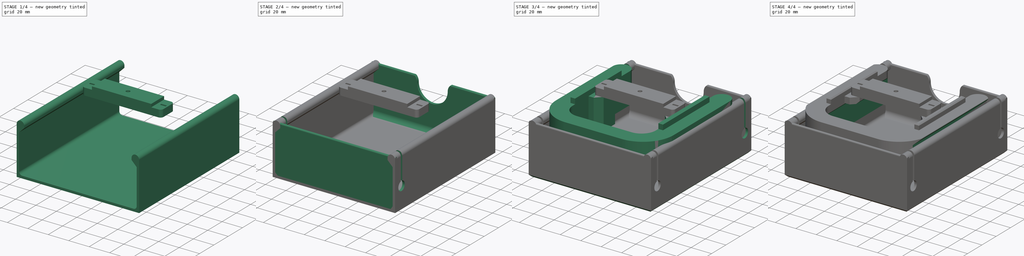
[diagram: build sequence overview — one tinted view per stage of 4, left to right]
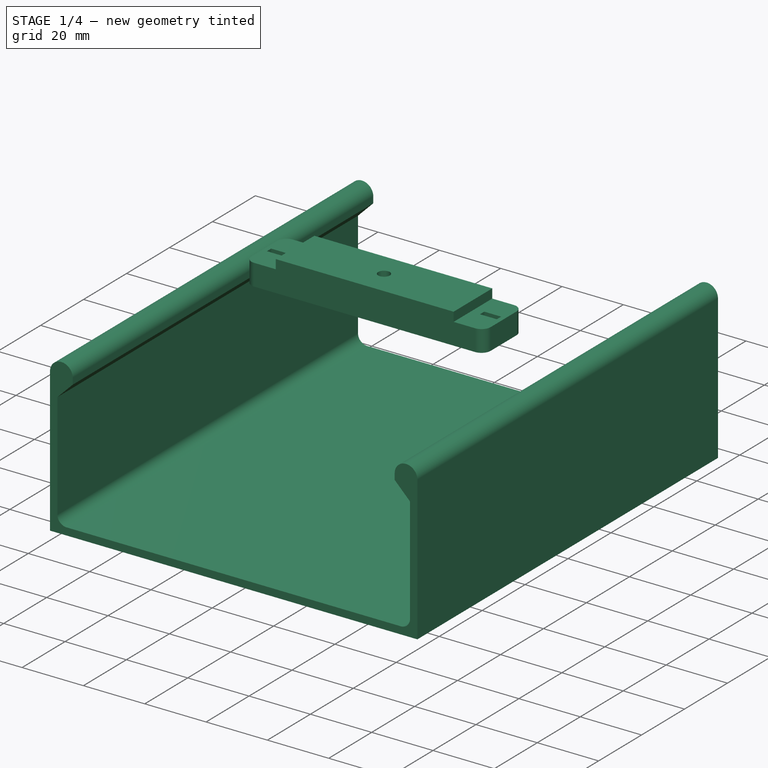
[diagram: stage 1 of 4 — iso view after this stage's code; geometry added in this stage tinted green]
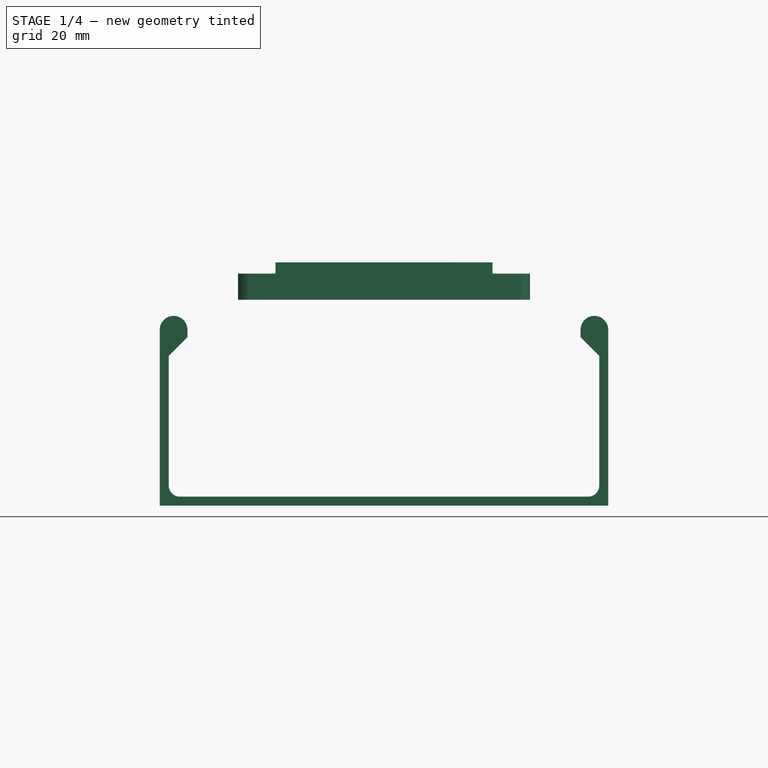
[diagram: stage 1 of 4 — front view after this stage's code; geometry added in this stage tinted green]
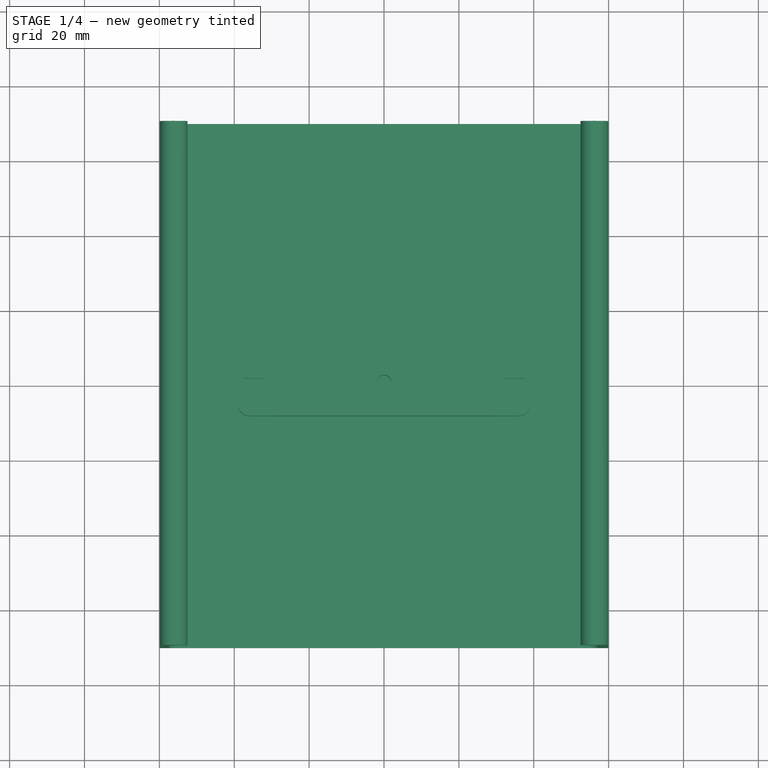
[diagram: stage 1 of 4 — top view after this stage's code; geometry added in this stage tinted green]
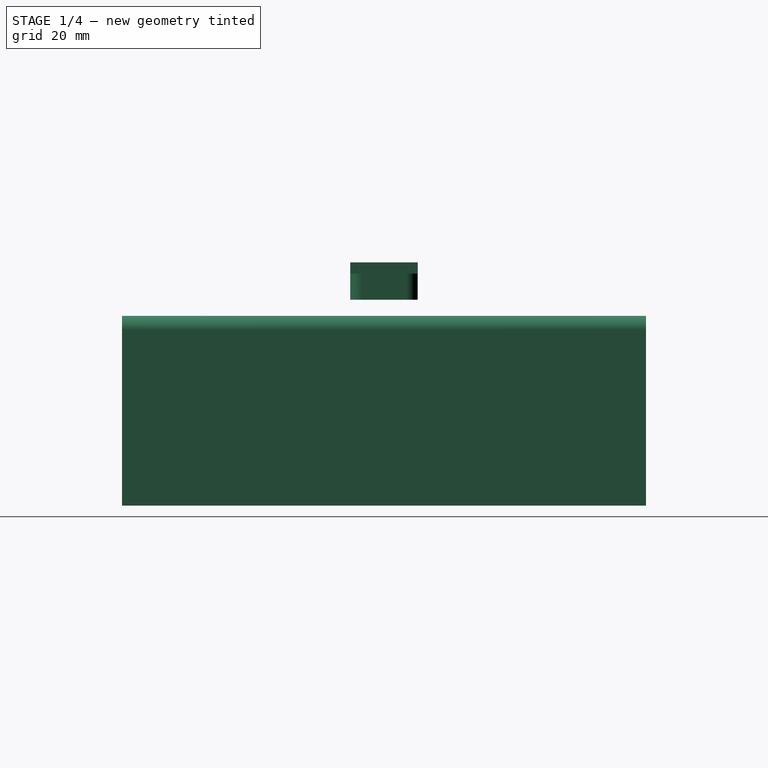
[diagram: stage 1 of 4 — right view after this stage's code; geometry added in this stage tinted green]
FCSTD DOCUMENT  (FreeCAD 0.21R33771 (Git))
Label: 20240401h_abdeckung
License: All rights reserved
LicenseURL: http://en.wikipedia.org/wiki/All_rights_reserved
objects: Sketcher::SketchObject×11, PartDesign::Pad×5, PartDesign::Pocket×5, PartDesign::Body×3, PartDesign::Chamfer×2, PartDesign::Mirrored×1
note: 39 computed .brp shape members not serialized (recipe doc carries the construction recipe); baked Part::Feature solids carry a one-line shape summary decoded from their .brp

FEATURE [PartDesign::Body] Body  label="halter"
  Group = -> [Sketch,Sketch001,Pad,Sketch002,Pad001,Chamfer,Sketch003,Pocket,Sketch004,Pocket001]
  Origin = -> Origin
  Tip = -> Pocket001
FEATURE [Sketcher::SketchObject] Sketch005
  FullyConstrained = true
  MapMode = 5
  Placement = pos=(0,0,0) rot=(1,0,0;1.5708rad)
  Support = -> [XZ_Plane001]
  sketch-geometry (21):
    g0: LineSegment StartX=-57.5 StartY=-49.6 StartZ=0 EndX=-57.5 EndY=-15 EndZ=0
    g1: LineSegment StartX=-57.5 StartY=-15 StartZ=0 EndX=-52.5 EndY=-10 EndZ=0
    g2: LineSegment StartX=-52.5 StartY=-10 StartZ=0 EndX=-52.5 EndY=-8 EndZ=0
    g3: ArcOfCircle CenterX=-56.2 CenterY=-8 CenterZ=0 NormalX=0 NormalY=0 NormalZ=1 AngleXU=0 Radius=3.7 StartAngle=-9e-16 EndAngle=3.14159
    g4: LineSegment StartX=-59.9 StartY=-8 StartZ=0 EndX=-59.9 EndY=-55 EndZ=0
    g5: LineSegment StartX=57.5 StartY=-49.6 StartZ=0 EndX=57.5 EndY=-15 EndZ=0
    g6: LineSegment StartX=57.5 StartY=-15 StartZ=0 EndX=52.5 EndY=-10 EndZ=0
    g7: LineSegment StartX=52.5 StartY=-10 StartZ=0 EndX=52.5 EndY=-8 EndZ=0
    g8: LineSegment StartX=59.9 StartY=-8 StartZ=0 EndX=59.9 EndY=-55 EndZ=0
    g9: ArcOfCircle CenterX=56.2 CenterY=-8 CenterZ=0 NormalX=0 NormalY=0 NormalZ=1 AngleXU=0 Radius=3.7 StartAngle=1e-16 EndAngle=3.14159
    g10: LineSegment StartX=52.5 StartY=-10 StartZ=0 EndX=-52.5 EndY=-10 EndZ=0
    g11: LineSegment StartX=52.5 StartY=-8 StartZ=0 EndX=-52.5 EndY=-8 EndZ=0
    g12: LineSegment StartX=-57.5 StartY=-15 StartZ=0 EndX=57.5 EndY=-15 EndZ=0
    g13: LineSegment StartX=59.9 StartY=-8 StartZ=0 EndX=52.5 EndY=-8 EndZ=0
    g14: LineSegment StartX=-52.5 StartY=-8 StartZ=0 EndX=-59.9 EndY=-8 EndZ=0
    g15: LineSegment StartX=-59.9 StartY=-55 StartZ=0 EndX=59.9 EndY=-55 EndZ=0
    g16: LineSegment StartX=54.5 StartY=-52.6 StartZ=0 EndX=-54.5 EndY=-52.6 EndZ=0
    g17: ArcOfCircle CenterX=-54.5 CenterY=-49.6 CenterZ=0 NormalX=0 NormalY=0 NormalZ=1 AngleXU=0 Radius=3 StartAngle=3.14159 EndAngle=4.71239
    g18: GeomPoint X=-57.5 Y=-52.6 Z=0
    g19: ArcOfCircle CenterX=54.5 CenterY=-49.6 CenterZ=0 NormalX=0 NormalY=0 NormalZ=1 AngleXU=0 Radius=3 StartAngle=4.71239 EndAngle=6.28319
    g20: GeomPoint X=57.5 Y=-52.6 Z=0
  constraints (55):
    c: Vertical(g0)
    c: Coincident(g0,g1)
    c: Coincident(g1,g2)
    c: Vertical(g2)
    c: Coincident(g3,g2)
    c: Coincident(g4,g3)
    c: Vertical(g4)
    c: Vertical(g5)
    c: Coincident(g5,g6)
    c: Coincident(g6,g7)
    c: Vertical(g7)
    c: Vertical(g8)
    c: Coincident(g9,g8)
    c: Coincident(g9,g7)
    c: Angle(g6) = 2.35619
    c: Angle(g1) = 0.785398
    c: Coincident(g10,g6)
    c: Coincident(g10,g1)
    c: Horizontal(g10)
    c: Coincident(g11,g7)
    c: Coincident(g11,g2)
    c: Coincident(g12,g0)
    c: Coincident(g12,g5)
    c: Coincident(g13,g8)
    c: Coincident(g13,g7)
    c: Coincident(g14,g2)
    c: Coincident(g14,g3)
    c: PointOnObject(g3,g14)
    c: PointOnObject(g9,g13)
    c: Horizontal(g13)
    c: Horizontal(g11)
    c: Horizontal(g14)
    c: Horizontal(g12)
    c: DistanceX(g0,g1) = 5
    c: DistanceY(g2,g2) = 2
    c: DistanceX(g4,g18) = 2.4
    c: Coincident(g15,g4)
    c: Coincident(g15,g8)
    c: DistanceY(g4,g18) = 2.4  'bodendicke'
    c: Equal(g3,g9)
    c: DistanceX(g0,g5) = 115
    c: Symmetric(g20,g18,g-2)
    c: DistanceY(g5) = -15
    c: PointOnObject(g18,g0)
    c: PointOnObject(g18,g16)
    c: Tangent(g0,g17) = 1.5708
    c: Tangent(g16,g17) = 1.5708
    c: PointOnObject(g20,g5)
    c: PointOnObject(g20,g16)
    c: Tangent(g5,g19) = -1.5708
    c: Tangent(g16,g19) = 1.5708
    c: Equal(g19,g17)
    c: Radius(g19) = 3
    c: Horizontal(g15)
    c: DistanceY(g8) = -55  'tiefe_ganz_unten'
FEATURE [PartDesign::Pad] Pad002  label="kanal"
  Direction = (0,-1,2e-16)
  Length = 140
  Length2 = 10
  Midplane = true
  Placement = pos=(0,0,0) rot=(1,0,0;1.5708rad)
  Profile = -> Sketch005
  ReferenceAxis = -> Sketch005 [N_Axis]
  Type = 0
FEATURE [PartDesign::Body] Body001  label="deckel"
  Group = -> [Sketch005,Pad002,Sketch006,Pad003,Sketch007,Pocket002,Sketch008,Pocket003,Chamfer001,Mirrored]
  Origin = -> Origin001
  Tip = -> Mirrored
FEATURE [Sketcher::SketchObject] Sketch009
  FullyConstrained = true
  MapMode = 5
  Support = -> [XY_Plane002]
  sketch-geometry (19):
    g0: ArcOfCircle CenterX=-36 CenterY=6 CenterZ=0 NormalX=0 NormalY=0 NormalZ=1 AngleXU=0 Radius=3 StartAngle=1.5708 EndAngle=3.14159
    g1: LineSegment StartX=-36 StartY=9 StartZ=0 EndX=36 EndY=9 EndZ=0
    g2: ArcOfCircle CenterX=36 CenterY=6 CenterZ=0 NormalX=0 NormalY=0 NormalZ=1 AngleXU=0 Radius=3 StartAngle=3e-16 EndAngle=1.5708
    g3: LineSegment StartX=39 StartY=6 StartZ=0 EndX=39 EndY=-6 EndZ=0
    g4: ArcOfCircle CenterX=36 CenterY=-6 CenterZ=0 NormalX=0 NormalY=0 NormalZ=1 AngleXU=0 Radius=3 StartAngle=4.71239 EndAngle=6.28319
    g5: LineSegment StartX=36 StartY=-9 StartZ=0 EndX=-36 EndY=-9 EndZ=0
    g6: ArcOfCircle CenterX=-36 CenterY=-6 CenterZ=0 NormalX=0 NormalY=0 NormalZ=1 AngleXU=0 Radius=3 StartAngle=3.14159 EndAngle=4.71239
    g7: LineSegment StartX=-39 StartY=-6 StartZ=0 EndX=-39 EndY=6 EndZ=0
    g8: GeomPoint X=-39 Y=9 Z=0
    g9: GeomPoint X=39 Y=-9 Z=0
    g10: LineSegment StartX=-37.5 StartY=1 StartZ=0 EndX=-32 EndY=1 EndZ=0
    g11: LineSegment StartX=-32 StartY=1 StartZ=0 EndX=-32 EndY=-1 EndZ=0
    g12: LineSegment StartX=-32 StartY=-1 StartZ=0 EndX=-37.5 EndY=-1 EndZ=0
    g13: LineSegment StartX=-37.5 StartY=-1 StartZ=0 EndX=-37.5 EndY=1 EndZ=0
    g14: LineSegment StartX=32 StartY=1 StartZ=0 EndX=37.5 EndY=1 EndZ=0
    g15: LineSegment StartX=37.5 StartY=1 StartZ=0 EndX=37.5 EndY=-1 EndZ=0
    g16: LineSegment StartX=37.5 StartY=-1 StartZ=0 EndX=32 EndY=-1 EndZ=0
    g17: LineSegment StartX=32 StartY=-1 StartZ=0 EndX=32 EndY=1 EndZ=0
    g18: Circle CenterX=0 CenterY=0 CenterZ=0 NormalX=0 NormalY=0 NormalZ=1 AngleXU=0 Radius=1.9
  constraints (47):
    c: Tangent(g0,g1) = 1.5708
    c: Tangent(g1,g2) = 1.5708
    c: Tangent(g2,g3) = 1.5708
    c: Tangent(g3,g4) = 1.5708
    c: Tangent(g4,g5) = 1.5708
    c: Tangent(g5,g6) = 1.5708
    c: Tangent(g6,g7) = 1.5708
    c: Tangent(g7,g0) = 1.5708
    c: Horizontal(g1)
    c: Horizontal(g5)
    c: Vertical(g3)
    c: Vertical(g7)
    c: Equal(g0,g2)
    c: Equal(g2,g4)
    c: Equal(g4,g6)
    c: PointOnObject(g8,g1)
    c: PointOnObject(g8,g7)
    c: PointOnObject(g9,g3)
    c: PointOnObject(g9,g5)
    c: Symmetric(g4,g0,g-1)
    c: Radius(g2) = 3
    c: DistanceX(g0,g2) = 78
    c: DistanceY(g4,g1) = 18
    c: Coincident(g10,g11)
    c: Coincident(g11,g12)
    c: Coincident(g12,g13)
    c: Coincident(g13,g10)
    c: Horizontal(g10)
    c: Horizontal(g12)
    c: Vertical(g13)
    c: Coincident(g14,g15)
    c: Coincident(g15,g16)
    c: Coincident(g16,g17)
    c: Coincident(g17,g14)
    c: Horizontal(g14)
    c: Horizontal(g16)
    c: Vertical(g15)
    c: Vertical(g17)
    c: Equal(g15,g11)
    c: Equal(g10,g14)
    c: DistanceX(g10,g10) = 5.5
    c: DistanceY(g11,g11) = 2
    c: Symmetric(g11,g10,g-1)
    c: Symmetric(g10,g14,g-2)
    c: DistanceX(g10) = -32
    c: Coincident(g18,g-1)
    c: Diameter(g18) = 3.8
FEATURE [PartDesign::Pad] Pad004
  Direction = (0,0,1)
  Length = 10
  Length2 = 10
  Profile = -> Sketch009
  ReferenceAxis = -> Sketch009 [N_Axis]
  Type = 0
FEATURE [Sketcher::SketchObject] Sketch010
  FullyConstrained = false
  MapMode = 5
  Placement = pos=(0,0,0) rot=(1,0,0;1.5708rad)
  Support = -> [XZ_Plane002]
  sketch-geometry (8):
    g0: LineSegment StartX=-60.4757 StartY=7 StartZ=0 EndX=-29 EndY=7 EndZ=0
    g1: LineSegment StartX=-29 StartY=7 StartZ=0 EndX=-29 EndY=16.4032 EndZ=0
    g2: LineSegment StartX=-29 StartY=16.4032 StartZ=0 EndX=29 EndY=16.4032 EndZ=0
    g3: LineSegment StartX=29 StartY=16.4032 StartZ=0 EndX=29 EndY=7 EndZ=0
    g4: LineSegment StartX=29 StartY=7 StartZ=0 EndX=60.6786 EndY=7 EndZ=0
    g5: LineSegment StartX=60.6786 StartY=7 StartZ=0 EndX=60.6786 EndY=33.264 EndZ=0
    g6: LineSegment StartX=60.6786 StartY=33.264 StartZ=0 EndX=-60.4757 EndY=33.264 EndZ=0
    g7: LineSegment StartX=-60.4757 StartY=33.264 StartZ=0 EndX=-60.4757 EndY=7 EndZ=0
  constraints (19):
    c: Horizontal(g0)
    c: Coincident(g0,g1)
    c: Coincident(g1,g2)
    c: Coincident(g2,g3)
    c: Coincident(g3,g4)
    c: Horizontal(g4)
    c: Coincident(g4,g5)
    c: Coincident(g5,g6)
    c: Horizontal(g6)
    c: Coincident(g6,g7)
    c: Coincident(g7,g0)
    c: Vertical(g1)
    c: Vertical(g3)
    c: Symmetric(g2,g1,g-2)
    c: Equal(g1,g3)
    c: DistanceX(g0) = -29
    c: DistanceY(g0) = 7
    c: Vertical(g7)
    c: Vertical(g5)
FEATURE [PartDesign::Pocket] Pocket004
  BaseFeature = -> Pad004
  Direction = (0,1,2e-16)
  Length = 5
  Length2 = 5
  Midplane = true
  Profile = -> Sketch010
  ReferenceAxis = -> Sketch010 [N_Axis]
  Type = 1
FEATURE [PartDesign::Body] Body002  label="schraubenbalken"
  Group = -> [Sketch009,Pad004,Sketch010,Pocket004]
  Origin = -> Origin002
  Placement = pos=(0,0,36) rot=(0,0,1;0rad)
  Tip = -> Pocket004
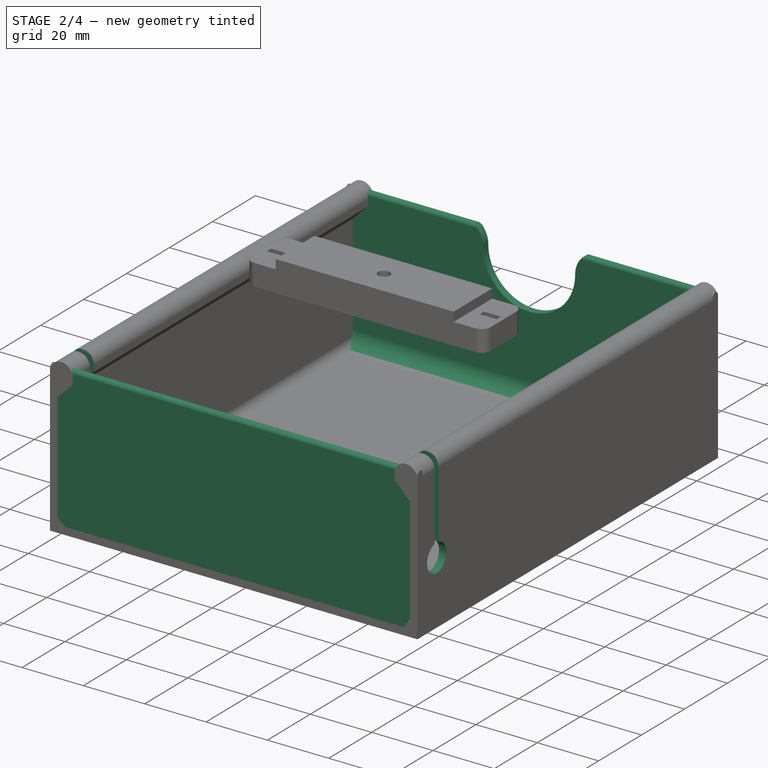
[diagram: stage 2 of 4 — iso view after this stage's code; geometry added in this stage tinted green]
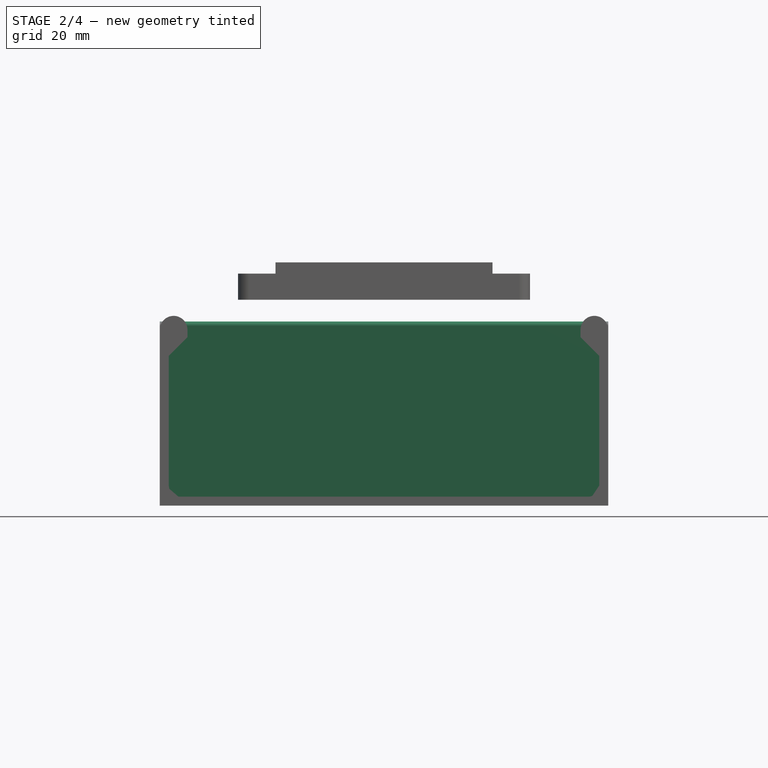
[diagram: stage 2 of 4 — front view after this stage's code; geometry added in this stage tinted green]
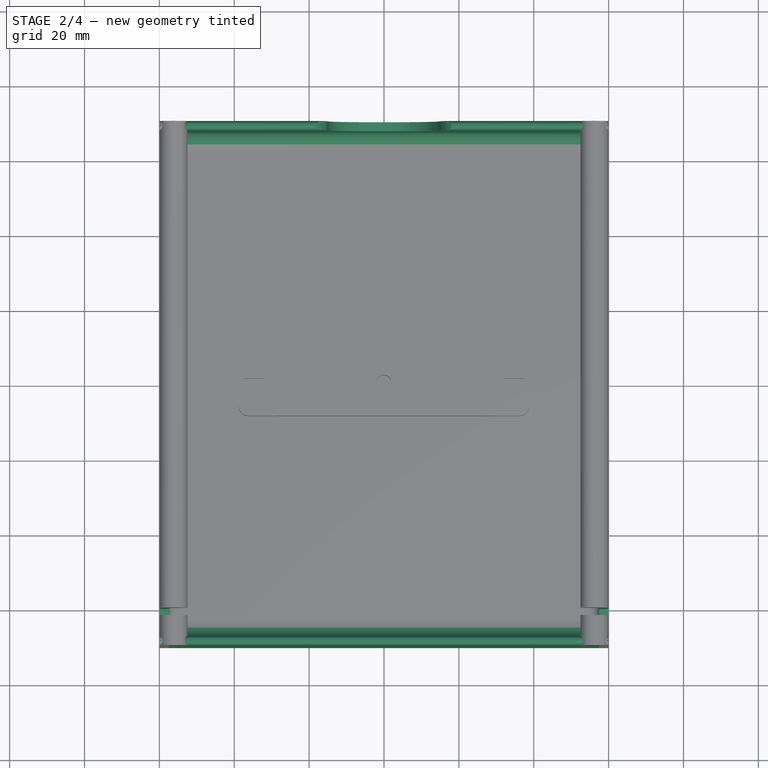
[diagram: stage 2 of 4 — top view after this stage's code; geometry added in this stage tinted green]
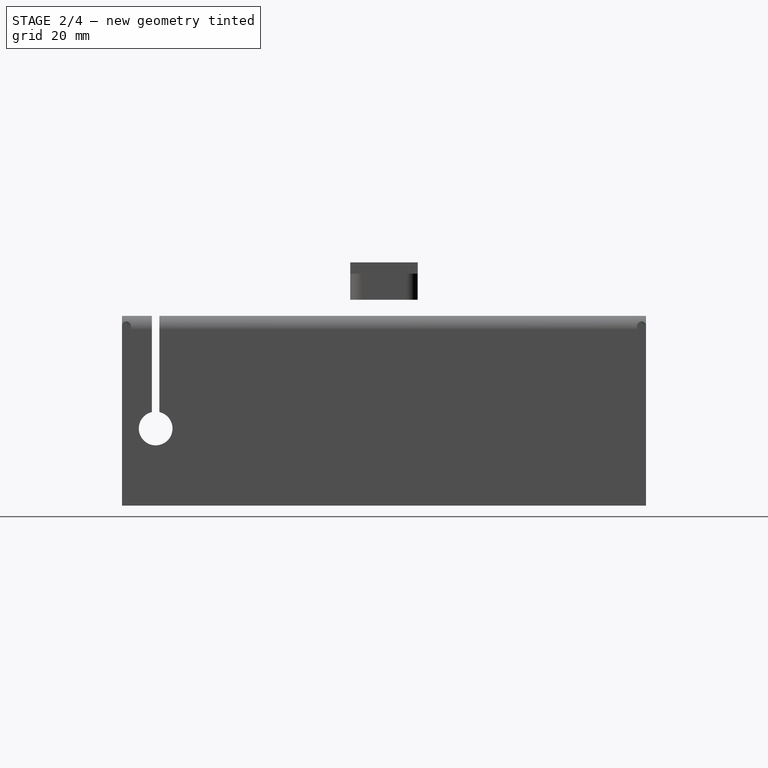
[diagram: stage 2 of 4 — right view after this stage's code; geometry added in this stage tinted green]
FEATURE [Sketcher::SketchObject] Sketch006
  FullyConstrained = true
  MapMode = 5
  Placement = pos=(0,0,0) rot=(0.57735,0.57735,0.57735;2.0944rad)
  Support = -> [YZ_Plane001]
  expr: Constraints[11] = <<Sketch005>>.Constraints.bodendicke
  expr: Constraints[12] = <<Sketch005>>.Constraints.bodendicke
  expr: Constraints[8] = <<Sketch005>>.Constraints.tiefe_ganz_unten
  expr: Constraints[9] = <<Sketch005>>.Constraints.bodendicke
  sketch-geometry (14):
    g0: LineSegment StartX=-70 StartY=-7 StartZ=0 EndX=-70 EndY=-55 EndZ=0
    g1: LineSegment StartX=-70 StartY=-55 StartZ=0 EndX=70 EndY=-55 EndZ=0
    g2: LineSegment StartX=70 StartY=-55 StartZ=0 EndX=70 EndY=-7 EndZ=0
    g3: LineSegment StartX=67.6 StartY=-7 StartZ=0 EndX=67.6 EndY=-47.6 EndZ=0
    g4: LineSegment StartX=62.6 StartY=-52.6 StartZ=0 EndX=-62.6 EndY=-52.6 EndZ=0
    g5: LineSegment StartX=-67.6 StartY=-47.6 StartZ=0 EndX=-67.6 EndY=-7 EndZ=0
    g6: ArcOfCircle CenterX=-62.6 CenterY=-47.6 CenterZ=0 NormalX=0 NormalY=0 NormalZ=1 AngleXU=0 Radius=5 StartAngle=3.14159 EndAngle=4.71239
    g7: GeomPoint X=-67.6 Y=-52.6 Z=0
    g8: ArcOfCircle CenterX=62.6 CenterY=-47.6 CenterZ=0 NormalX=0 NormalY=0 NormalZ=1 AngleXU=0 Radius=5 StartAngle=4.71239 EndAngle=6.28319
    g9: GeomPoint X=67.6 Y=-52.6 Z=0
    g10: ArcOfCircle CenterX=-68.8 CenterY=-7 CenterZ=0 NormalX=0 NormalY=0 NormalZ=1 AngleXU=0 Radius=1.2 StartAngle=1.15e-14 EndAngle=3.14159
    g11: ArcOfCircle CenterX=68.8 CenterY=-7 CenterZ=0 NormalX=0 NormalY=0 NormalZ=1 AngleXU=0 Radius=1.2 StartAngle=5e-15 EndAngle=3.14159
    g12: LineSegment StartX=70 StartY=-7 StartZ=0 EndX=67.6 EndY=-7 EndZ=0
    g13: LineSegment StartX=-67.6 StartY=-7 StartZ=0 EndX=-70 EndY=-7 EndZ=0
  constraints (37):
    c: Vertical(g0)
    c: Coincident(g0,g1)
    c: Horizontal(g1)
    c: Coincident(g1,g2)
    c: Vertical(g2)
    c: Vertical(g3)
    c: Horizontal(g4)
    c: Vertical(g5)
    c: DistanceY(g1) = -55
    c: DistanceY(g1,g9) = 2.4
    c: Symmetric(g3,g5,g-2)
    c: DistanceX(g9,g1) = 2.4
    c: DistanceX(g0,g7) = 2.4
    c: DistanceX(g0,g1) = 140
    c: PointOnObject(g7,g4)
    c: PointOnObject(g7,g5)
    c: Tangent(g4,g6) = 1.5708
    c: Tangent(g5,g6) = 1.5708
    c: PointOnObject(g9,g3)
    c: PointOnObject(g9,g4)
    c: Tangent(g3,g8) = 1.5708
    c: Tangent(g4,g8) = 1.5708
    c: Equal(g8,g6)
    c: Radius(g8) = 5
    c: Coincident(g10,g5)
    c: Coincident(g10,g0)
    c: Coincident(g11,g2)
    c: Coincident(g11,g3)
    c: Coincident(g12,g2)
    c: Coincident(g12,g3)
    c: Horizontal(g12)
    c: PointOnObject(g11,g12)
    c: Coincident(g13,g5)
    c: Coincident(g13,g0)
    c: Horizontal(g13)
    c: PointOnObject(g10,g13)
    c: DistanceY(g11) = -7
FEATURE [PartDesign::Pad] Pad003  label="wand"
  BaseFeature = -> Pad002
  Direction = (1,-2e-16,3e-16)
  Length = 119.8
  Length2 = 10
  Midplane = true
  Placement = pos=(0,0,0) rot=(1,0,0;1.5708rad)
  Profile = -> Sketch006
  ReferenceAxis = -> Sketch006 [N_Axis]
  Type = 0
FEATURE [Sketcher::SketchObject] Sketch007
  FullyConstrained = true
  MapMode = 5
  Placement = pos=(0,0,0) rot=(0.57735,0.57735,0.57735;2.0944rad)
  Support = -> [YZ_Plane001]
  sketch-geometry (5):
    g0: ArcOfCircle CenterX=-61 CenterY=20 CenterZ=0 NormalX=0 NormalY=0 NormalZ=1 AngleXU=0 Radius=1 StartAngle=-9e-16 EndAngle=3.14159
    g1: LineSegment StartX=-62 StartY=20 StartZ=0 EndX=-62 EndY=-30 EndZ=0
    g2: LineSegment StartX=-60 StartY=-30 StartZ=0 EndX=-60 EndY=20 EndZ=0
    g3: ArcOfCircle CenterX=-61 CenterY=-34.3875 CenterZ=0 NormalX=0 NormalY=0 NormalZ=1 AngleXU=0 Radius=4.5 StartAngle=1.79489 EndAngle=7.62989
    g4: LineSegment StartX=-60 StartY=-30 StartZ=0 EndX=-62 EndY=-30 EndZ=0
  constraints (14):
    c: Tangent(g0,g1) = -1.5708
    c: Tangent(g2,g0) = -1.5708
    c: Vertical(g2)
    c: DistanceX(g0,g0) = 2
    c: Coincident(g3,g2)
    c: Coincident(g3,g1)
    c: DistanceY(g2) = -30
    c: Coincident(g4,g2)
    c: Coincident(g4,g1)
    c: Horizontal(g4)
    c: Vertical(g1)
    c: Diameter(g3) = 9
    c: DistanceX(g0) = -60
    c: DistanceY(g-1,g0) = 20
FEATURE [PartDesign::Pocket] Pocket002
  BaseFeature = -> Pad003
  Direction = (-1,2e-16,-3e-16)
  Length = 5
  Length2 = 5
  Midplane = true
  Placement = pos=(0,0,0) rot=(1,0,0;1.5708rad)
  Profile = -> Sketch007
  ReferenceAxis = -> Sketch007 [N_Axis]
  Type = 1
FEATURE [Sketcher::SketchObject] Sketch008
  FullyConstrained = false
  MapMode = 5
  Placement = pos=(0,0,0) rot=(1,0,0;1.5708rad)
  Support = -> [XZ_Plane001]
  sketch-geometry (9):
    g0: ArcOfCircle CenterX=0 CenterY=-12 CenterZ=0 NormalX=0 NormalY=0 NormalZ=1 AngleXU=0 Radius=15 StartAngle=3.14159 EndAngle=6.28319
    g1: ArcOfCircle CenterX=22.7709 CenterY=-12 CenterZ=0 NormalX=0 NormalY=0 NormalZ=1 AngleXU=0 Radius=7.77086 StartAngle=1.5708 EndAngle=3.14159
    g2: ArcOfCircle CenterX=-22.7709 CenterY=-12 CenterZ=0 NormalX=0 NormalY=0 NormalZ=1 AngleXU=0 Radius=7.77086 StartAngle=0 EndAngle=1.5708
    g3: LineSegment StartX=15 StartY=-12 StartZ=0 EndX=-15 EndY=-12 EndZ=0
    g4: LineSegment StartX=-15 StartY=-12 StartZ=0 EndX=-22.7709 EndY=-12 EndZ=0
    g5: LineSegment StartX=15 StartY=-12 StartZ=0 EndX=22.7709 EndY=-12 EndZ=0
    g6: LineSegment StartX=-22.7709 StartY=-4.22914 StartZ=0 EndX=-22.7709 EndY=-12 EndZ=0
    g7: LineSegment StartX=22.7709 StartY=-4.22914 StartZ=0 EndX=22.7709 EndY=-12 EndZ=0
    g8: LineSegment StartX=-22.7709 StartY=-4.22914 StartZ=0 EndX=22.7709 EndY=-4.22914 EndZ=0
  constraints (26):
    c: PointOnObject(g0,g-2)
    c: Coincident(g1,g0)
    c: Coincident(g2,g0)
    c: Coincident(g3,g0)
    c: Coincident(g3,g0)
    c: Horizontal(g3)
    c: PointOnObject(g0,g3)
    c: DistanceX(g3,g3) = 30
    c: Coincident(g4,g0)
    c: Coincident(g4,g2)
    c: Horizontal(g4)
    c: Coincident(g5,g0)
    c: Coincident(g5,g1)
    c: Horizontal(g5)
    c: Equal(g5,g4)
    c: DistanceY(g0) = -12
    c: Coincident(g6,g2)
    c: Coincident(g6,g2)
    c: Coincident(g7,g1)
    c: Coincident(g7,g1)
    c: Vertical(g7)
    c: Vertical(g6)
    c: Coincident(g8,g2)
    c: Coincident(g8,g1)
    c: Horizontal(g8)
    c: Tangent(g8,g2)
FEATURE [PartDesign::Pocket] Pocket003  label="kabeltasche"
  BaseFeature = -> Pocket002
  Direction = (0,1,2e-16)
  Length = 5
  Length2 = 5
  Placement = pos=(0,0,0) rot=(1,0,0;1.5708rad)
  Profile = -> Sketch008
  ReferenceAxis = -> Sketch008 [N_Axis]
  Type = 1
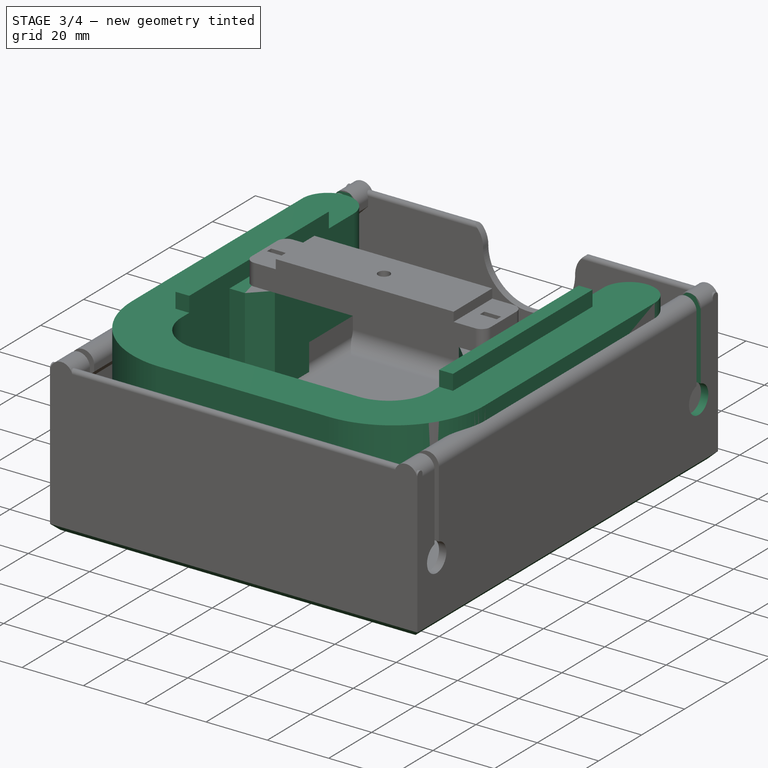
[diagram: stage 3 of 4 — iso view after this stage's code; geometry added in this stage tinted green]
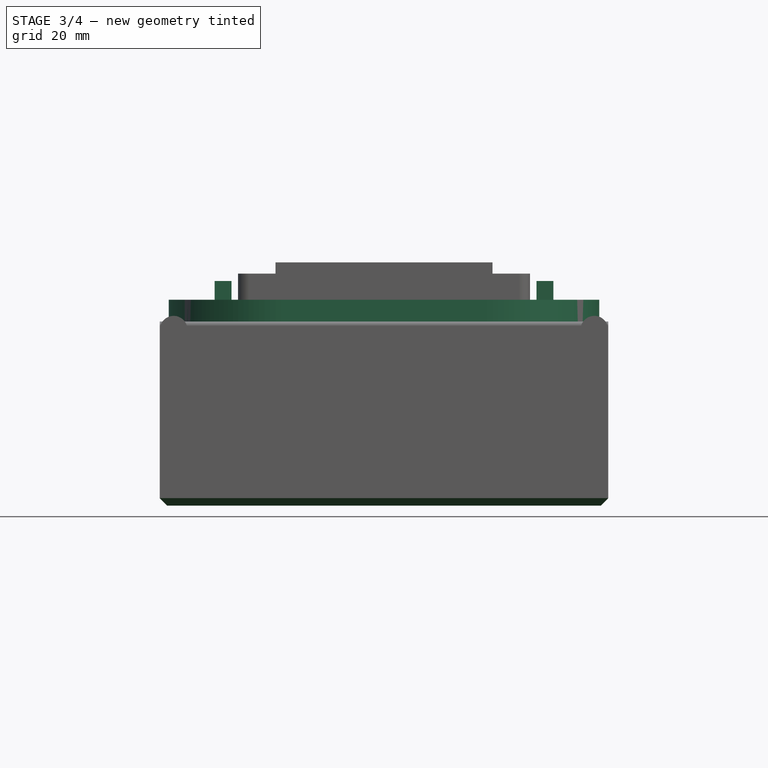
[diagram: stage 3 of 4 — front view after this stage's code; geometry added in this stage tinted green]
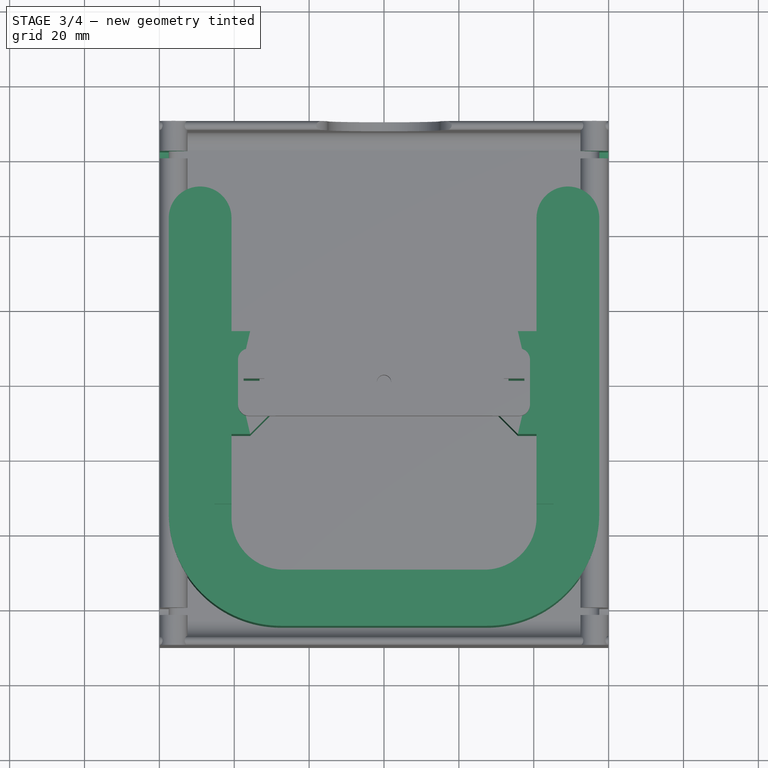
[diagram: stage 3 of 4 — top view after this stage's code; geometry added in this stage tinted green]
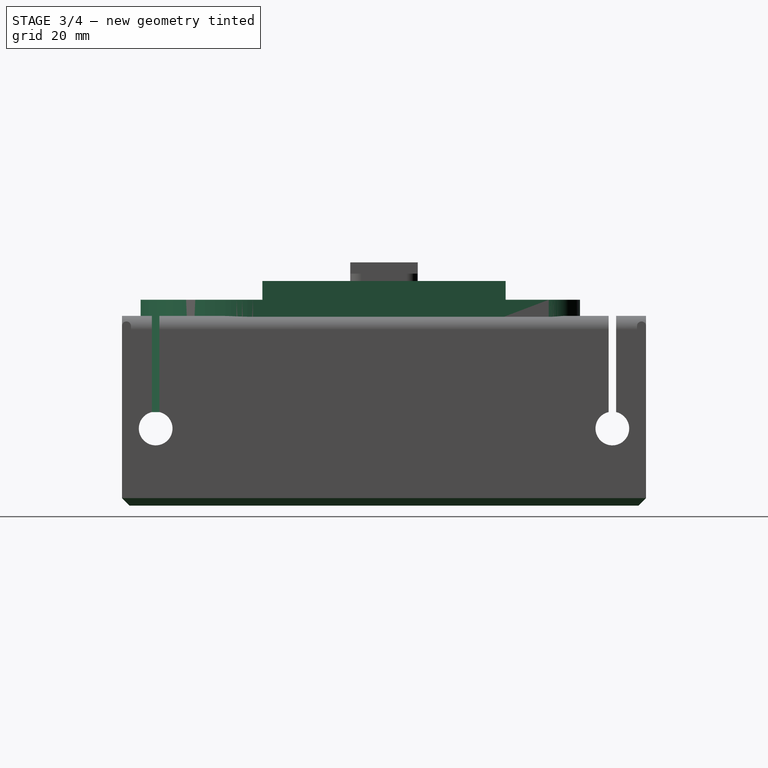
[diagram: stage 3 of 4 — right view after this stage's code; geometry added in this stage tinted green]
FEATURE [Sketcher::SketchObject] Sketch  label="grundform"
  FullyConstrained = true
  MapMode = 5
  Support = -> [XY_Plane]
  sketch-geometry (15):
    g0: LineSegment StartX=-39.1531 StartY=40.75 StartZ=0 EndX=-40.75 EndY=39.1531 EndZ=0
    g1: LineSegment StartX=-40.75 StartY=39.1531 StartZ=0 EndX=-40.75 EndY=-39.1531 EndZ=0
    g2: LineSegment StartX=-40.75 StartY=-39.1531 StartZ=0 EndX=-39.1531 EndY=-40.75 EndZ=0
    g3: LineSegment StartX=-39.1531 StartY=-40.75 StartZ=0 EndX=39.1531 EndY=-40.75 EndZ=0
    g4: LineSegment StartX=39.1531 StartY=-40.75 StartZ=0 EndX=40.75 EndY=-39.1531 EndZ=0
    g5: LineSegment StartX=40.75 StartY=-39.1531 StartZ=0 EndX=40.75 EndY=39.1531 EndZ=0
    g6: LineSegment StartX=40.75 StartY=39.1531 StartZ=0 EndX=39.1531 EndY=40.75 EndZ=0
    g7: LineSegment StartX=39.1531 StartY=40.75 StartZ=0 EndX=-39.1531 EndY=40.75 EndZ=0
    g8: LineSegment StartX=-40.75 StartY=39.1531 StartZ=0 EndX=40.75 EndY=39.1531 EndZ=0
    g9: LineSegment StartX=40.75 StartY=-39.1531 StartZ=0 EndX=-40.75 EndY=-39.1531 EndZ=0
    g10: LineSegment StartX=-39.1531 StartY=40.75 StartZ=0 EndX=-39.1531 EndY=-40.75 EndZ=0
    g11: LineSegment StartX=39.1531 StartY=40.75 StartZ=0 EndX=39.1531 EndY=-40.75 EndZ=0
    g12: LineSegment StartX=-39.1531 StartY=40.75 StartZ=0 EndX=39.1531 EndY=-40.75 EndZ=0
    g13: LineSegment StartX=40.75 StartY=39.1531 StartZ=0 EndX=-40.75 EndY=-39.1531 EndZ=0
    g14: GeomPoint X=0 Y=0 Z=0
  constraints (37):
    c: Coincident(g0,g1)
    c: Vertical(g1)
    c: Coincident(g1,g2)
    c: Coincident(g2,g3)
    c: Horizontal(g3)
    c: Coincident(g3,g4)
    c: Coincident(g4,g5)
    c: Vertical(g5)
    c: Coincident(g5,g6)
    c: Coincident(g6,g7)
    c: Coincident(g7,g0)
    c: Horizontal(g7)
    c: Coincident(g8,g0)
    c: Coincident(g8,g5)
    c: Horizontal(g8)
    c: Coincident(g9,g4)
    c: Coincident(g9,g1)
    c: Horizontal(g9)
    c: Coincident(g10,g0)
    c: Coincident(g10,g2)
    c: Vertical(g10)
    c: Coincident(g11,g6)
    c: Coincident(g11,g3)
    c: Vertical(g11)
    c: Equal(g6,g4)
    c: Equal(g4,g2)
    c: Equal(g7,g5)
    c: Equal(g8,g11)
    c: Distance(g4,g0) = 113
    c: DistanceX(g0,g5) = 81.5
    c: Coincident(g12,g0)
    c: Coincident(g12,g3)
    c: Coincident(g13,g5)
    c: Coincident(g13,g1)
    c: PointOnObject(g14,g12)
    c: PointOnObject(g14,g13)
    c: Coincident(g14,g-1)
FEATURE [Sketcher::SketchObject] Sketch001
  FullyConstrained = false
  MapMode = 5
  Support = -> [XY_Plane]
  sketch-geometry (41):
    g0: LineSegment StartX=-40.75 StartY=44 StartZ=0 EndX=-40.75 EndY=13.75 EndZ=0
    g1: LineSegment StartX=-40.75 StartY=13.75 StartZ=0 EndX=-35.75 EndY=13.75 EndZ=0
    g2: LineSegment StartX=-35.75 StartY=13.75 StartZ=0 EndX=-30 EndY=8 EndZ=0
    g3: LineSegment StartX=-30 StartY=8 StartZ=0 EndX=-30 EndY=-8 EndZ=0
    g4: LineSegment StartX=-30 StartY=-8 StartZ=0 EndX=-35.75 EndY=-13.75 EndZ=0
    g5: LineSegment StartX=-35.75 StartY=-13.75 StartZ=0 EndX=-40.75 EndY=-13.75 EndZ=0
    g6: LineSegment StartX=-40.75 StartY=-13.75 StartZ=0 EndX=-40.75 EndY=-36 EndZ=0
    g7: LineSegment StartX=-26.75 StartY=-50 StartZ=0 EndX=26.75 EndY=-50 EndZ=0
    g8: LineSegment StartX=40.75 StartY=-36 StartZ=0 EndX=40.75 EndY=-13.75 EndZ=0
    g9: LineSegment StartX=40.75 StartY=-13.75 StartZ=0 EndX=35.75 EndY=-13.75 EndZ=0
    g10: LineSegment StartX=35.75 StartY=-13.75 StartZ=0 EndX=30 EndY=-8 EndZ=0
    g11: LineSegment StartX=30 StartY=-8 StartZ=0 EndX=30 EndY=8 EndZ=0
    g12: LineSegment StartX=30 StartY=8 StartZ=0 EndX=35.75 EndY=13.75 EndZ=0
    g13: LineSegment StartX=35.75 StartY=13.75 StartZ=0 EndX=40.75 EndY=13.75 EndZ=0
    g14: LineSegment StartX=40.75 StartY=13.75 StartZ=0 EndX=40.75 EndY=44 EndZ=0
    g15: LineSegment StartX=57.5 StartY=44 StartZ=0 EndX=57.5 EndY=-35 EndZ=0
    g16: LineSegment StartX=27.5 StartY=-65 StartZ=0 EndX=-27.5 EndY=-65 EndZ=0
    g17: LineSegment StartX=-57.5 StartY=-35 StartZ=0 EndX=-57.5 EndY=44 EndZ=0
    g18: LineSegment StartX=-38.75 StartY=1 StartZ=0 EndX=-33.25 EndY=1 EndZ=0
    g19: LineSegment StartX=-33.25 StartY=1 StartZ=0 EndX=-33.25 EndY=-1 EndZ=0
    g20: LineSegment StartX=-33.25 StartY=-1 StartZ=0 EndX=-38.75 EndY=-1 EndZ=0
    g21: LineSegment StartX=-38.75 StartY=-1 StartZ=0 EndX=-38.75 EndY=1 EndZ=0
    g22: LineSegment StartX=33.25 StartY=1 StartZ=0 EndX=38.75 EndY=1 EndZ=0
    g23: LineSegment StartX=38.75 StartY=1 StartZ=0 EndX=38.75 EndY=-1 EndZ=0
    g24: LineSegment StartX=38.75 StartY=-1 StartZ=0 EndX=33.25 EndY=-1 EndZ=0
    g25: LineSegment StartX=33.25 StartY=-1 StartZ=0 EndX=33.25 EndY=1 EndZ=0
    g26: LineSegment StartX=-35.75 StartY=13.75 StartZ=0 EndX=35.75 EndY=13.75 EndZ=0
    g27: LineSegment StartX=-35.75 StartY=-13.75 StartZ=0 EndX=35.75 EndY=-13.75 EndZ=0
    g28: LineSegment StartX=30 StartY=8 StartZ=0 EndX=-30 EndY=8 EndZ=0
    g29: ArcOfCircle CenterX=-26.75 CenterY=-36 CenterZ=0 NormalX=0 NormalY=0 NormalZ=1 AngleXU=0 Radius=14 StartAngle=3.14159 EndAngle=4.71239
    g30: GeomPoint X=-40.75 Y=-50 Z=0
    g31: ArcOfCircle CenterX=26.75 CenterY=-36 CenterZ=0 NormalX=0 NormalY=0 NormalZ=1 AngleXU=0 Radius=14 StartAngle=4.71239 EndAngle=6.28319
    g32: GeomPoint X=40.75 Y=-50 Z=0
    g33: ArcOfCircle CenterX=-27.5 CenterY=-35 CenterZ=0 NormalX=0 NormalY=0 NormalZ=1 AngleXU=0 Radius=30 StartAngle=3.14159 EndAngle=4.71239
    g34: GeomPoint X=-57.5 Y=-65 Z=0
    g35: ArcOfCircle CenterX=27.5 CenterY=-35 CenterZ=0 NormalX=0 NormalY=0 NormalZ=1 AngleXU=0 Radius=30 StartAngle=4.71239 EndAngle=6.28319
    g36: GeomPoint X=57.5 Y=-65 Z=0
    g37: ArcOfCircle CenterX=-49.125 CenterY=44 CenterZ=0 NormalX=0 NormalY=0 NormalZ=1 AngleXU=0 Radius=8.375 StartAngle=4e-16 EndAngle=3.14159
    g38: ArcOfCircle CenterX=49.125 CenterY=44 CenterZ=0 NormalX=0 NormalY=0 NormalZ=1 AngleXU=0 Radius=8.375 StartAngle=0 EndAngle=3.14159
    g39: LineSegment StartX=-57.5 StartY=44 StartZ=0 EndX=57.5 EndY=44 EndZ=0
    g40: LineSegment StartX=27.5 StartY=-35 StartZ=0 EndX=57.5 EndY=-35 EndZ=0
  constraints (107):
    c: Vertical(g0)
    c: Coincident(g0,g1)
    c: Horizontal(g1)
    c: Coincident(g1,g2)
    c: Coincident(g2,g3)
    c: Vertical(g3)
    c: Coincident(g3,g4)
    c: Coincident(g4,g5)
    c: Horizontal(g5)
    c: Coincident(g5,g6)
    c: Vertical(g6)
    c: Horizontal(g7)
    c: Vertical(g8)
    c: Coincident(g8,g9)
    c: Horizontal(g9)
    c: Coincident(g9,g10)
    c: Coincident(g10,g11)
    c: Vertical(g11)
    c: Coincident(g11,g12)
    c: Coincident(g12,g13)
    c: Coincident(g13,g14)
    c: Vertical(g14)
    c: Vertical(g15)
    c: Horizontal(g16)
    c: Vertical(g17)
    c: Horizontal(g13)
    c: Coincident(g18,g19)
    c: Coincident(g19,g20)
    c: Coincident(g20,g21)
    c: Coincident(g21,g18)
    c: Horizontal(g18)
    c: Horizontal(g20)
    c: Vertical(g21)
    c: Coincident(g22,g23)
    c: Coincident(g23,g24)
    c: Coincident(g24,g25)
    c: Coincident(g25,g22)
    c: Horizontal(g22)
    c: Horizontal(g24)
    c: Vertical(g23)
    c: Vertical(g25)
    c: Coincident(g26,g1)
    c: Coincident(g26,g12)
    c: Coincident(g27,g4)
    c: PointOnObject(g27,g10)
    c: Horizontal(g27)
    c: Coincident(g28,g11)
    c: Coincident(g28,g2)
    c: Horizontal(g28)
    c: Horizontal(g26)
    c: Symmetric(g14,g0,g-2)
    c: DistanceX(g0,g14) = 81.5
    c: DistanceY(g32) = -50
    c: DistanceY(g14) = 44
    c: Symmetric(g0,g5,g-1)
    c: Symmetric(g8,g13,g-1)
    c: Angle(g2) = -0.785398
    c: Angle(g12) = 0.785398
    c: Angle(g10) = 2.35619
    c: Angle(g4) = -2.35619
    c: Equal(g2,g4)
    c: Symmetric(g18,g19,g-1)
    c: DistanceX(g18,g18) = 5.5
    c: DistanceY(g21,g21) = 2
    c: Equal(g18,g22)
    c: Equal(g25,g21)
    c: Symmetric(g19,g24,g-2)
    c: DistanceX(g5,g20) = 2
    c: Symmetric(g10,g3,g-2)
    c: DistanceX(g10) = 30
    c: DistanceY(g10) = -8
    c: DistanceX(g13,g13) = 5
    c: DistanceX(g34,g36) = 115
    c: DistanceY(g36) = -65
    c: PointOnObject(g30,g6)
    c: PointOnObject(g30,g7)
    c: Tangent(g6,g29) = -1.5708
    c: Tangent(g7,g29) = -1.5708
    c: PointOnObject(g32,g7)
    c: PointOnObject(g32,g8)
    c: Tangent(g7,g31) = -1.5708
    c: Tangent(g8,g31) = -1.5708
    c: Equal(g31,g29)
    c: PointOnObject(g34,g16)
    c: PointOnObject(g34,g17)
    c: Tangent(g16,g33) = 1.5708
    c: Tangent(g17,g33) = 1.5708
    c: PointOnObject(g36,g15)
    c: PointOnObject(g36,g16)
    c: Tangent(g15,g35) = 1.5708
    c: Tangent(g16,g35) = 1.5708
    c: Radius(g31) = 14
    c: Equal(g33,g35)
    c: Coincident(g37,g0)
    c: Coincident(g38,g14)
    c: Coincident(g38,g15)
    c: Coincident(g37,g17)
    c: Coincident(g39,g17)
    c: Coincident(g39,g15)
    c: Horizontal(g39)
    c: PointOnObject(g38,g39)
    c: PointOnObject(g37,g39)
    c: PointOnObject(g0,g39)
    c: Equal(g38,g37)
    c: Coincident(g40,g35)
    c: Horizontal(g40)
    c: Radius(g35) = 30
FEATURE [PartDesign::Pad] Pad  label="grundform001"
  Direction = (0,0,1)
  Length = 30
  Length2 = 5
  Profile = -> Sketch001
  ReferenceAxis = -> Sketch001 [N_Axis]
  Reversed = true
  Type = 0
FEATURE [Sketcher::SketchObject] Sketch002
  FullyConstrained = true
  MapMode = 5
  Support = -> [XY_Plane]
  sketch-geometry (9):
    g0: LineSegment StartX=-45.25 StartY=32.5 StartZ=0 EndX=-40.75 EndY=32.5 EndZ=0
    g1: LineSegment StartX=-40.75 StartY=32.5 StartZ=0 EndX=-40.75 EndY=-32.5 EndZ=0
    g2: LineSegment StartX=-40.75 StartY=-32.5 StartZ=0 EndX=-45.25 EndY=-32.5 EndZ=0
    g3: LineSegment StartX=-45.25 StartY=-32.5 StartZ=0 EndX=-45.25 EndY=32.5 EndZ=0
    g4: LineSegment StartX=40.75 StartY=32.5 StartZ=0 EndX=45.25 EndY=32.5 EndZ=0
    g5: LineSegment StartX=45.25 StartY=32.5 StartZ=0 EndX=45.25 EndY=-32.5 EndZ=0
    g6: LineSegment StartX=45.25 StartY=-32.5 StartZ=0 EndX=40.75 EndY=-32.5 EndZ=0
    g7: LineSegment StartX=40.75 StartY=-32.5 StartZ=0 EndX=40.75 EndY=32.5 EndZ=0
    g8: LineSegment StartX=-40.75 StartY=-32.5 StartZ=0 EndX=40.75 EndY=-32.5 EndZ=0
  constraints (24):
    c: Coincident(g0,g1)
    c: Coincident(g1,g2)
    c: Coincident(g2,g3)
    c: Coincident(g3,g0)
    c: Horizontal(g0)
    c: Horizontal(g2)
    c: Vertical(g1)
    c: Vertical(g3)
    c: Coincident(g4,g5)
    c: Coincident(g5,g6)
    c: Coincident(g6,g7)
    c: Coincident(g7,g4)
    c: Horizontal(g4)
    c: Horizontal(g6)
    c: Vertical(g5)
    c: Equal(g4,g0)
    c: Symmetric(g0,g4,g-2)
    c: DistanceX(g0,g4) = 81.5
    c: DistanceX(g0,g4) = 90.5
    c: Symmetric(g4,g6,g-1)
    c: DistanceY(g5,g4) = 65
    c: Coincident(g8,g1)
    c: Coincident(g8,g6)
    c: Horizontal(g8)
FEATURE [PartDesign::Pad] Pad001  label="steg"
  BaseFeature = -> Pad
  Direction = (0,0,1)
  Length = 5
  Length2 = 10
  Profile = -> Sketch002
  ReferenceAxis = -> Sketch002 [N_Axis]
  Type = 0
FEATURE [PartDesign::Chamfer] Chamfer001
  Angle = 45
  Base = -> Pocket003 [Face6]
  BaseFeature = -> Pocket003
  ChamferType = 0
  FlipDirection = false
  Placement = pos=(0,0,0) rot=(1,0,0;1.5708rad)
  Size = 2
  Size2 = 1
  SupportTransform = false
  UseAllEdges = false
FEATURE [PartDesign::Mirrored] Mirrored
  BaseFeature = -> Chamfer001
  MirrorPlane = -> Sketch007 [V_Axis]
  Originals = -> [Pocket002]
  Placement = pos=(0,0,0) rot=(1,0,0;1.5708rad)
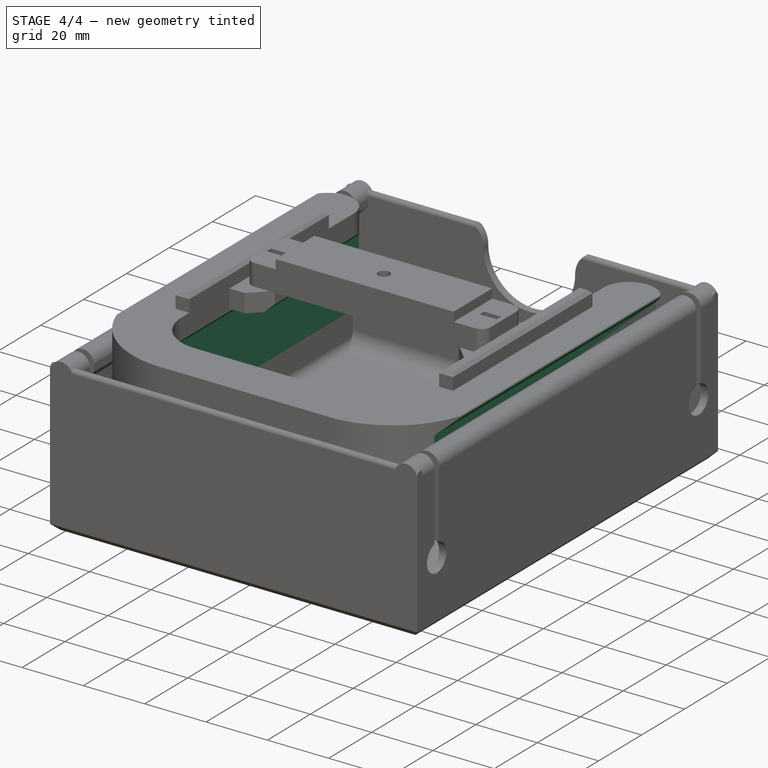
[diagram: stage 4 of 4 — iso view after this stage's code; geometry added in this stage tinted green]
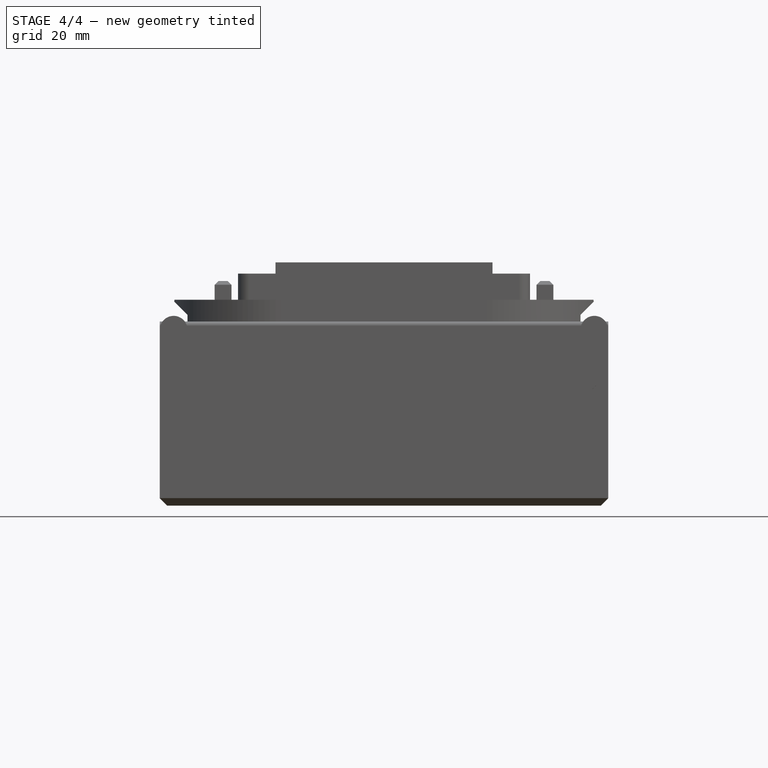
[diagram: stage 4 of 4 — front view after this stage's code; geometry added in this stage tinted green]
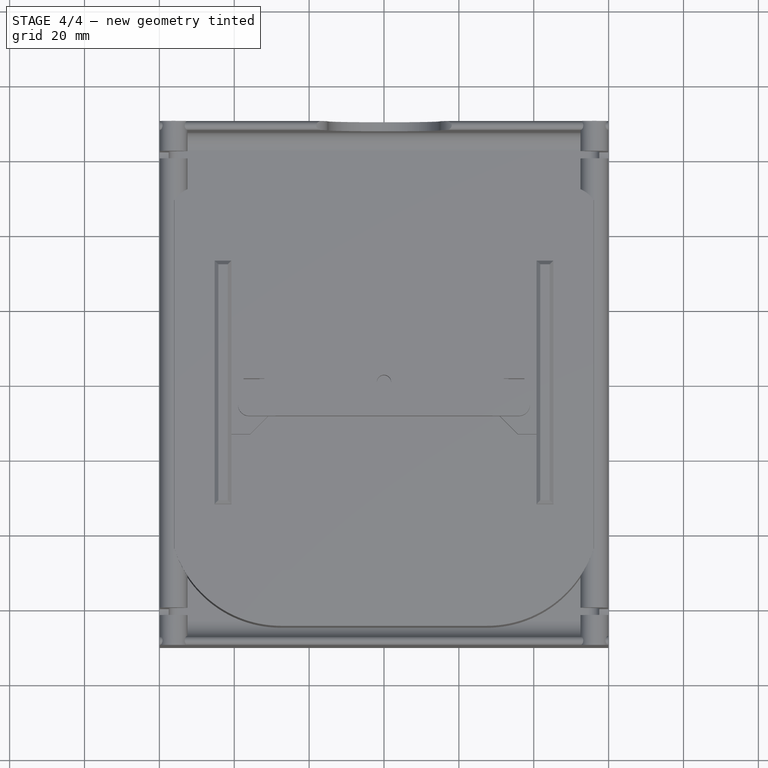
[diagram: stage 4 of 4 — top view after this stage's code; geometry added in this stage tinted green]
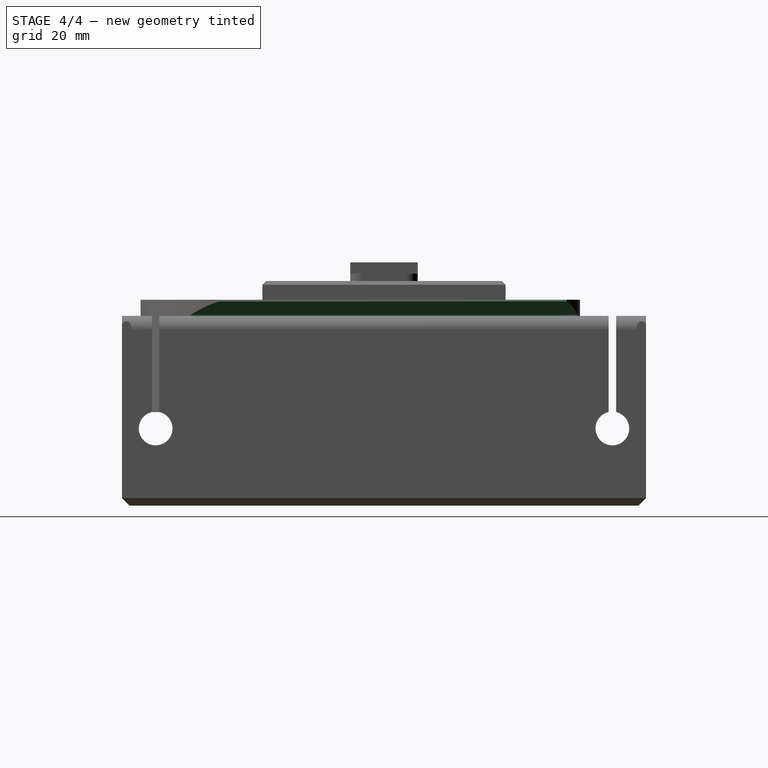
[diagram: stage 4 of 4 — right view after this stage's code; geometry added in this stage tinted green]
FEATURE [Sketcher::SketchObject] Sketch003
  FullyConstrained = false
  MapMode = 5
  Placement = pos=(0,0,0) rot=(1,0,0;1.5708rad)
  Support = -> [XZ_Plane]
  sketch-geometry (27):
    g0: LineSegment StartX=-100.426 StartY=-54.8337 StartZ=0 EndX=-100.426 EndY=56.3676 EndZ=0
    g1: LineSegment StartX=-100.426 StartY=56.3676 StartZ=0 EndX=85.9546 EndY=56.3676 EndZ=0
    g2: LineSegment StartX=85.9546 StartY=56.3676 StartZ=0 EndX=85.9546 EndY=-54.8337 EndZ=0
    g3: LineSegment StartX=52.5 StartY=18.5414 StartZ=0 EndX=-52.5 EndY=18.5414 EndZ=0
    g4: LineSegment StartX=52.5 StartY=-10 StartZ=0 EndX=57.5 EndY=-15 EndZ=0
    g5: LineSegment StartX=-52.5 StartY=-10 StartZ=0 EndX=-57.5 EndY=-15 EndZ=0
    g6: LineSegment StartX=-57.5 StartY=-15 StartZ=0 EndX=-57.5 EndY=-22 EndZ=0
    g7: LineSegment StartX=-57.5 StartY=-22 StartZ=0 EndX=-52.5 EndY=-27 EndZ=0
    g8: LineSegment StartX=-52.5 StartY=-27 StartZ=0 EndX=-52.5 EndY=-39 EndZ=0
    g9: LineSegment StartX=57.5 StartY=-15 StartZ=0 EndX=57.5 EndY=-22 EndZ=0
    g10: LineSegment StartX=52.5 StartY=-27 StartZ=0 EndX=52.5 EndY=-39 EndZ=0
    g11: LineSegment StartX=-57.5 StartY=-22 StartZ=0 EndX=57.5 EndY=-22 EndZ=0
    g12: LineSegment StartX=57.5 StartY=-22 StartZ=0 EndX=52.5 EndY=-27 EndZ=0
    g13: LineSegment StartX=52.5 StartY=-10 StartZ=0 EndX=52.5 EndY=-27 EndZ=0
    g14: LineSegment StartX=52.5 StartY=-39 StartZ=0 EndX=36.6663 EndY=-54.8337 EndZ=0
    g15: LineSegment StartX=85.9546 StartY=-54.8337 StartZ=0 EndX=36.6663 EndY=-54.8337 EndZ=0
    g16: LineSegment StartX=-52.5 StartY=-39 StartZ=0 EndX=-36.6663 EndY=-54.8337 EndZ=0
    g17: LineSegment StartX=-100.426 StartY=-54.8337 StartZ=0 EndX=-36.6663 EndY=-54.8337 EndZ=0
    g18: LineSegment StartX=52.5 StartY=-10 StartZ=0 EndX=52.5 EndY=-4 EndZ=0
    g19: LineSegment StartX=52.5 StartY=-4 StartZ=0 EndX=56.04 EndY=-0.46 EndZ=0
    g20: LineSegment StartX=-52.5 StartY=-10 StartZ=0 EndX=-52.5 EndY=-4 EndZ=0
    g21: LineSegment StartX=-52.5 StartY=-4 StartZ=0 EndX=-56.04 EndY=-0.46 EndZ=0
    g22: LineSegment StartX=-52.5 StartY=-4 StartZ=0 EndX=-52.5 EndY=18.5414 EndZ=0
    g23: LineSegment StartX=52.5 StartY=-4 StartZ=0 EndX=52.5 EndY=18.5414 EndZ=0
    g24: LineSegment StartX=-52.5 StartY=18.5414 StartZ=0 EndX=-56.04 EndY=-0.46 EndZ=0
    g25: LineSegment StartX=52.5 StartY=18.5414 StartZ=0 EndX=56.04 EndY=-0.46 EndZ=0
    g26: LineSegment StartX=-52.5 StartY=-4 StartZ=0 EndX=52.5 EndY=-4 EndZ=0
  constraints (67):
    c: Coincident(g0,g1)
    c: Horizontal(g1)
    c: Coincident(g1,g2)
    c: Horizontal(g3)
    c: Vertical(g2)
    c: Vertical(g0)
    c: Symmetric(g5,g4,g-2)
    c: DistanceY(g4,g-1) = 10
    c: DistanceX(g3,g3) = 105
    c: Symmetric(g5,g4,g-2)
    c: Angle(g4) = -0.785398
    c: Coincident(g5,g6)
    c: Vertical(g6)
    c: Coincident(g6,g7)
    c: Coincident(g7,g8)
    c: Vertical(g8)
    c: Coincident(g4,g9)
    c: Vertical(g9)
    c: Vertical(g10)
    c: Symmetric(g8,g10,g-2)
    c: Equal(g8,g10)
    c: Angle(g7) = -0.785398
    c: Coincident(g11,g6)
    c: Coincident(g11,g9)
    c: Horizontal(g11)
    c: DistanceY(g9,g9) = 7
    c: DistanceX(g4,g4) = 5
    c: Coincident(g12,g9)
    c: Coincident(g12,g10)
    c: Coincident(g13,g10)
    c: Vertical(g13)
    c: Coincident(g14,g10)
    c: Coincident(g15,g2)
    c: Coincident(g15,g14)
    c: Coincident(g16,g8)
    c: Coincident(g17,g0)
    c: Coincident(g17,g16)
    c: Horizontal(g17)
    c: Horizontal(g15)
    c: Angle(g16) = -0.785398
    c: Angle(g14) = -2.35619
    c: Equal(g14,g16)
    c: DistanceY(g10,g10) = 12
    c: Coincident(g4,g18)
    c: Vertical(g18)
    c: Coincident(g18,g19)
    c: Coincident(g5,g20)
    c: Vertical(g20)
    c: Coincident(g20,g21)
    c: Coincident(g22,g20)
    c: Coincident(g22,g3)
    c: Vertical(g22)
    c: Coincident(g23,g18)
    c: Coincident(g23,g3)
    c: Vertical(g23)
    c: Coincident(g24,g3)
    c: Coincident(g24,g21)
    c: Coincident(g25,g3)
    c: Coincident(g25,g19)
    c: Symmetric(g19,g21,g-2)
    c: Angle(g19) = 0.785398
    c: Coincident(g26,g20)
    c: Coincident(g26,g18)
    c: Horizontal(g26)
    c: DistanceY(g18) = -4
    c: DistanceX(g19) = 56.04
    c: Coincident(g13,g4)
FEATURE [Sketcher::SketchObject] Sketch004
  FullyConstrained = false
  MapMode = 5
  Placement = pos=(0,0,0) rot=(1,0,0;1.5708rad)
  Support = -> [XZ_Plane]
  sketch-geometry (13):
    g0: LineSegment StartX=66.3279 StartY=-58.3279 StartZ=0 EndX=43 EndY=-35 EndZ=0
    g1: LineSegment StartX=40 StartY=-6 StartZ=0 EndX=32 EndY=-6 EndZ=0
    g2: LineSegment StartX=32 StartY=-6 StartZ=0 EndX=0 EndY=26 EndZ=0
    g3: LineSegment StartX=0 StartY=26 StartZ=0 EndX=-32 EndY=-6 EndZ=0
    g4: LineSegment StartX=-32 StartY=-6 StartZ=0 EndX=-40 EndY=-6 EndZ=0
    g5: LineSegment StartX=-43 StartY=-35 StartZ=0 EndX=-66.3279 EndY=-58.3279 EndZ=0
    g6: LineSegment StartX=-66.3279 StartY=-58.3279 StartZ=0 EndX=66.3279 EndY=-58.3279 EndZ=0
    g7: LineSegment StartX=32 StartY=-6 StartZ=0 EndX=-32 EndY=-6 EndZ=0
    g8: LineSegment StartX=-40 StartY=-6 StartZ=0 EndX=-43 EndY=-9 EndZ=0
    g9: LineSegment StartX=40 StartY=-6 StartZ=0 EndX=43 EndY=-9 EndZ=0
    g10: LineSegment StartX=-43 StartY=-9 StartZ=0 EndX=-43 EndY=-35 EndZ=0
    g11: LineSegment StartX=43 StartY=-9 StartZ=0 EndX=43 EndY=-35 EndZ=0
    g12: LineSegment StartX=43 StartY=-9 StartZ=0 EndX=-43 EndY=-9 EndZ=0
  constraints (36):
    c: Horizontal(g1)
    c: Coincident(g1,g2)
    c: Coincident(g2,g3)
    c: Coincident(g3,g4)
    c: Horizontal(g4)
    c: Coincident(g5,g6)
    c: Coincident(g6,g0)
    c: Horizontal(g6)
    c: Angle(g5) = -2.35619
    c: Angle(g0) = 2.35619
    c: Angle(g2) = 2.35619
    c: Angle(g3) = -2.35619
    c: DistanceX(g1) = 40
    c: DistanceX(g1) = 32
    c: DistanceY(g1) = -6
    c: Coincident(g7,g1)
    c: Coincident(g7,g3)
    c: Horizontal(g7)
    c: Equal(g4,g1)
    c: PointOnObject(g2,g-2)
    c: Coincident(g8,g4)
    c: Coincident(g9,g1)
    c: Angle(g9) = -0.785398
    c: Angle(g8) = -2.35619
    c: Coincident(g10,g8)
    c: Coincident(g10,g5)
    c: Coincident(g11,g9)
    c: Coincident(g11,g0)
    c: Vertical(g11)
    c: Vertical(g10)
    c: Equal(g10,g11)
    c: DistanceX(g8) = -43
    c: Coincident(g12,g9)
    c: Coincident(g12,g8)
    c: Horizontal(g12)
    c: DistanceY(g5) = -35
FEATURE [PartDesign::Chamfer] Chamfer
  Angle = 45
  Base = -> Pad001 [Face45,Face27]
  BaseFeature = -> Pad001
  ChamferType = 0
  FlipDirection = false
  Size = 1
  Size2 = 1
  SupportTransform = false
  UseAllEdges = false
FEATURE [PartDesign::Pocket] Pocket  label="seitenprofil"
  BaseFeature = -> Chamfer
  Direction = (0,1,2e-16)
  Length = 5
  Length2 = 5
  Midplane = true
  Profile = -> Sketch003
  ReferenceAxis = -> Sketch003 [N_Axis]
  Type = 1
FEATURE [PartDesign::Pocket] Pocket001
  BaseFeature = -> Pocket
  Direction = (0,1,2e-16)
  Length = 100
  Length2 = 40
  Profile = -> Sketch004
  ReferenceAxis = -> Sketch004 [N_Axis]
  Type = 4
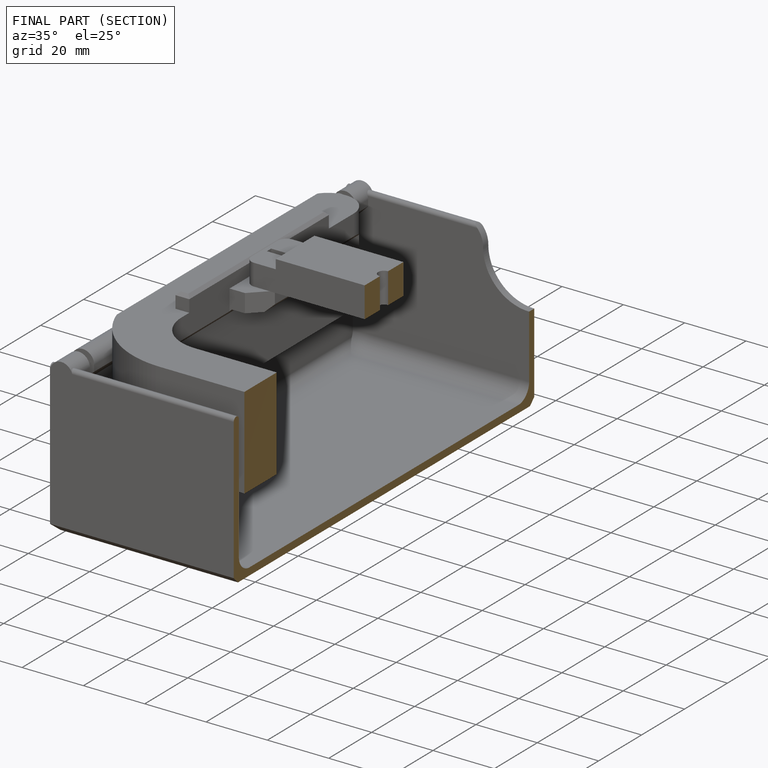
[diagram: finished part — half-section view (interior)]
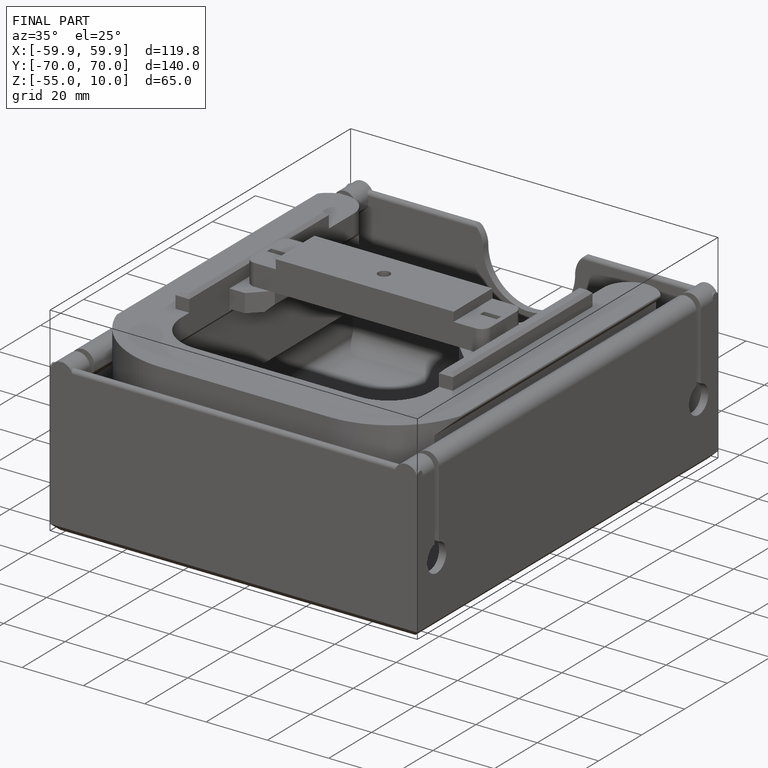
[diagram: finished part — iso view with bounding-box wireframe]
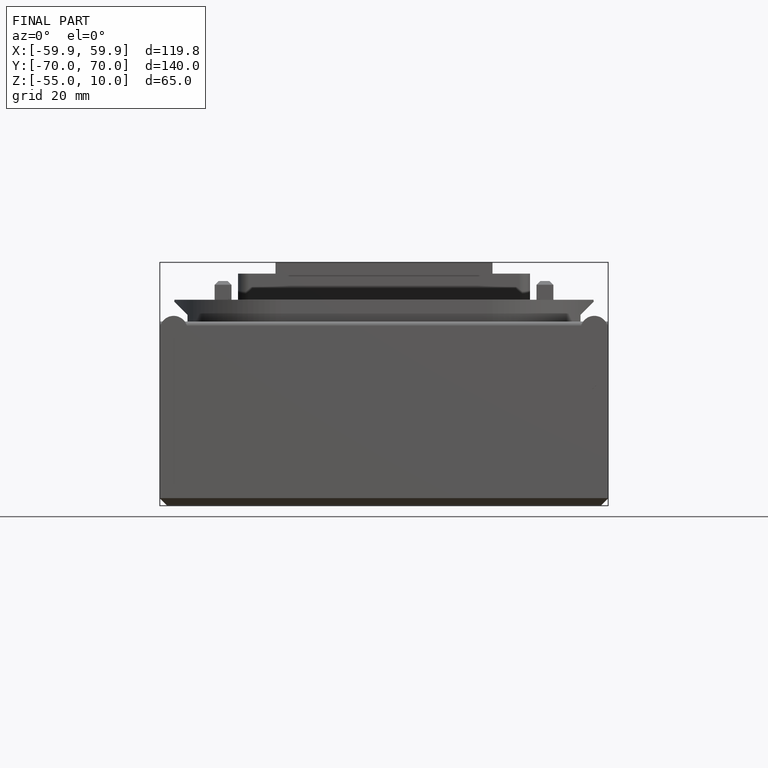
[diagram: finished part — front view with bounding-box wireframe]
